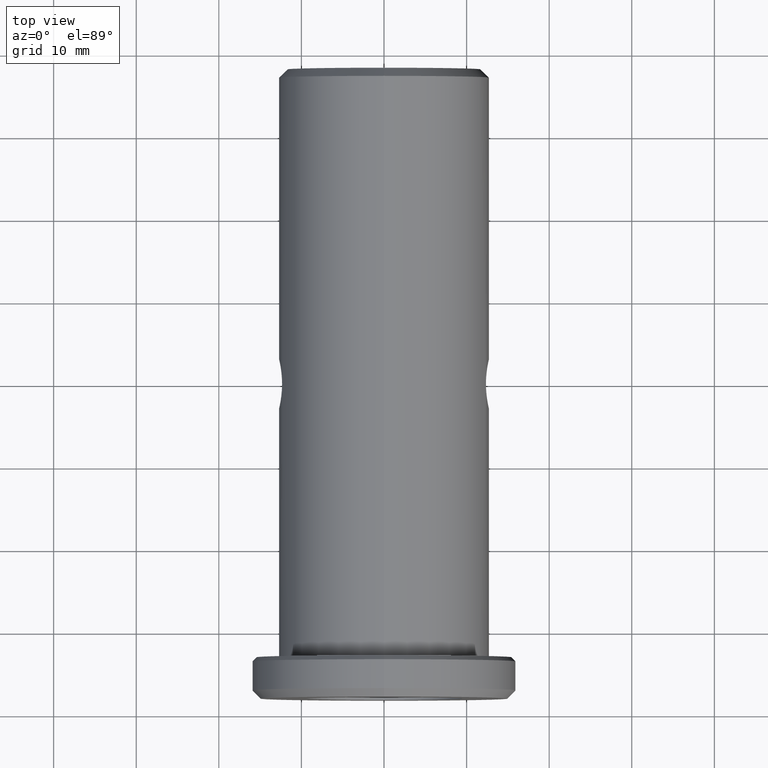
[diagram: clean part render]
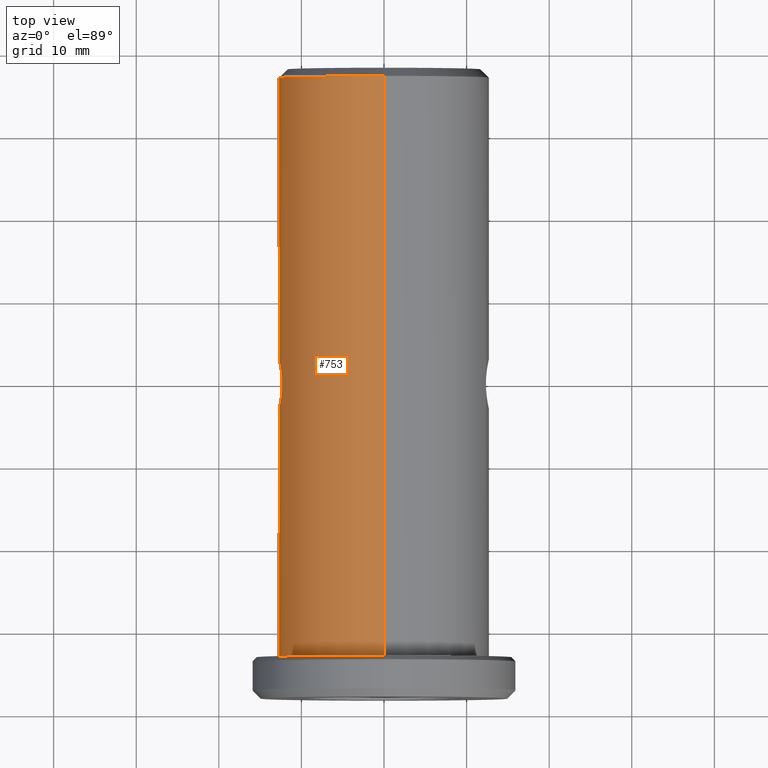
[diagram: same view with one face highlighted and labeled with its STEP entity id]
A machine part, top view. The second image highlights one B-rep face of the part: STEP entity #753.
In plain terms, the highlighted cylindrical surface (partial cylindrical patch) has radius 12.7 mm, axis along (0, 1, 0).
Its self-contained STEP definition (entity closure, byte-faithful):
#5 = CARTESIAN_POINT ( 'NONE',  ( -12.34058345460214700, 3.673897267749889900E-016, 3.000000000000000400 ) ) ;
#12 = VERTEX_POINT ( 'NONE', #610 ) ;
#19 = CARTESIAN_POINT ( 'NONE',  ( -12.37722027103388500, -0.9685606658001284500, 2.846111210040976200 ) ) ;
#22 = CARTESIAN_POINT ( 'NONE',  ( -12.67747894214159700, -2.903424418151325300, 0.7802111343050290900 ) ) ;
#44 = B_SPLINE_CURVE_WITH_KNOTS ( 'NONE', 3,
 ( #181, #187, #102, #94, #92, #62, #52, #126, #404, #422, #418, #431, #165, #112, #1009, #262, #152, #640, #624, #122, #311, #453, #562, #758, #133, #380, #467, #617, #725, #738 ),
 .UNSPECIFIED., .F., .F.,
 ( 4, 2, 2, 2, 2, 2, 2, 2, 2, 2, 2, 2, 2, 2, 4 ),
 ( 0.009412667079034401800, 0.01058893397553798700, 0.01117706742378978000, 0.01176520087204157300, 0.01235333432029336500, 0.01294146776854516000, 0.01411773466504874500, 0.01470586811330053600, 0.01529400156155233000, 0.01588213500980412100, 0.01647026845805591600, 0.01705840190630770700, 0.01764653535455949800, 0.01823466880281129200, 0.01882280225106308300 ),
 .UNSPECIFIED. ) ;
#52 = CARTESIAN_POINT ( 'NONE',  ( -12.49796677050642300, 1.981859612206928300, 2.260636793640891100 ) ) ;
#55 = CARTESIAN_POINT ( 'NONE',  ( -12.41102950409115700, -1.332781145287208000, -2.694869083710705200 ) ) ;
#62 = CARTESIAN_POINT ( 'NONE',  ( -12.47468320798980900, 1.831332780074599800, 2.384247804627435600 ) ) ;
#78 = CARTESIAN_POINT ( 'NONE',  ( -12.63135113081014500, -2.695621424171695600, -1.331080578736588000 ) ) ;
#85 = CARTESIAN_POINT ( 'NONE',  ( -12.67748171377693100, -2.903438611103019300, -0.7804499343708752900 ) ) ;
#92 = CARTESIAN_POINT ( 'NONE',  ( -12.43103365166612800, 1.505541849477609600, 2.602260764166044900 ) ) ;
#94 = CARTESIAN_POINT ( 'NONE',  ( -12.41076176351435700, 1.330169052897215400, 2.696087432792287700 ) ) ;
#102 = CARTESIAN_POINT ( 'NONE',  ( -12.36050455192009600, 0.7883155537857091700, 2.920874390630895600 ) ) ;
#106 = CARTESIAN_POINT ( 'NONE',  ( -12.37731333908835300, -0.9698132417050455700, -2.845713835891867200 ) ) ;
#112 = CARTESIAN_POINT ( 'NONE',  ( -12.70001675460108400, 3.000070927815543100, -0.1968384151971257200 ) ) ;
#122 = CARTESIAN_POINT ( 'NONE',  ( -12.56857411084801700, 2.385479401305897500, -1.829792836393111300 ) ) ;
#126 = CARTESIAN_POINT ( 'NONE',  ( -12.54482249560000200, 2.258576005346344800, 1.984207817577006100 ) ) ;
#133 = CARTESIAN_POINT ( 'NONE',  ( -12.41113163061574400, 1.333592059538673400, -2.694390179056004500 ) ) ;
#137 = VERTEX_POINT ( 'NONE', #657 ) ;
#146 = LINE ( 'NONE', #287, #522 ) ;
#147 = EDGE_CURVE ( 'NONE', #706, #789, #146, .T. ) ;
#152 = CARTESIAN_POINT ( 'NONE',  ( -12.66431776804078300, 2.846104808753820300, -0.9685504591483926600 ) ) ;
#165 = CARTESIAN_POINT ( 'NONE',  ( -12.69996635353023400, 2.999857563269277400, 0.3969109907540829800 ) ) ;
#166 = CARTESIAN_POINT ( 'NONE',  ( -12.34058345460214100, -0.1961959589774317500, 3.000000000000000400 ) ) ;
#181 = CARTESIAN_POINT ( 'NONE',  ( -12.34058345460214700, 3.673897267749889900E-016, 3.000000000000000400 ) ) ;
#182 = CARTESIAN_POINT ( 'NONE',  ( -12.54505977580016900, -2.259940119749591900, 1.982768662898593400 ) ) ;
#187 = CARTESIAN_POINT ( 'NONE',  ( -12.34058345460214300, 0.3922863687159829900, 3.000000000000000000 ) ) ;
#246 = ORIENTED_EDGE ( 'NONE', *, *, #971, .T. ) ;
#249 = CARTESIAN_POINT ( 'NONE',  ( -12.56820308289541500, -2.383544736948751000, -1.832375976632214300 ) ) ;
#262 = CARTESIAN_POINT ( 'NONE',  ( -12.67766831579774900, 2.904248302489957000, -0.7770932324453367900 ) ) ;
#266 = DIRECTION ( 'NONE',  ( 0.0000000000000000000, 0.0000000000000000000, 1.000000000000000000 ) ) ;
#267 = CARTESIAN_POINT ( 'NONE',  ( 0.0000000000000000000, 26.50383876709786800, 0.0000000000000000000 ) ) ;
#274 = DIRECTION ( 'NONE',  ( 0.0000000000000000000, 1.000000000000000000, 0.0000000000000000000 ) ) ;
#287 = CARTESIAN_POINT ( 'NONE',  ( 0.0000000000000000000, 26.50383876709786800, 12.70000000000000800 ) ) ;
#289 = CARTESIAN_POINT ( 'NONE',  ( -12.69540616597752500, -2.980729924772695900, -0.3928192765991701500 ) ) ;
#291 = CARTESIAN_POINT ( 'NONE',  ( -12.61142186795497000, -2.601781344507209800, 1.506246624472293400 ) ) ;
#302 = EDGE_CURVE ( 'NONE', #390, #953, #924, .T. ) ;
#304 = ORIENTED_EDGE ( 'NONE', *, *, #761, .F. ) ;
#307 = ORIENTED_EDGE ( 'NONE', *, *, #147, .T. ) ;
#311 = CARTESIAN_POINT ( 'NONE',  ( -12.54510018992768900, 2.260074456527657800, -1.982419639357174000 ) ) ;
#314 = CARTESIAN_POINT ( 'NONE',  ( -12.47454810378221300, -1.830403358838166700, -2.384947633839919600 ) ) ;
#320 = CARTESIAN_POINT ( 'NONE',  ( -12.66417354560177300, -2.845458674054940600, -0.9703171150653145900 ) ) ;
#344 = DIRECTION ( 'NONE',  ( 0.0000000000000000000, 1.000000000000000000, 0.0000000000000000000 ) ) ;
#351 = FACE_BOUND ( 'NONE', #740, .T. ) ;
#380 = CARTESIAN_POINT ( 'NONE',  ( -12.37755469971725100, 0.9726971642225672500, -2.844655769152295600 ) ) ;
#385 = CIRCLE ( 'NONE', #633, 12.70000000000000800 ) ;
#387 = CARTESIAN_POINT ( 'NONE',  ( -12.34058345460214500, 0.0000000000000000000, -3.000000000000000400 ) ) ;
#390 = VERTEX_POINT ( 'NONE', #409 ) ;
#392 = CYLINDRICAL_SURFACE ( 'NONE', #981, 12.70000000000000800 ) ;
#404 = CARTESIAN_POINT ( 'NONE',  ( -12.56844300761515900, 2.384757141274783000, 1.830568633040425400 ) ) ;
#409 = CARTESIAN_POINT ( 'NONE',  ( -12.34058345460214500, 0.0000000000000000000, -3.000000000000000400 ) ) ;
#418 = CARTESIAN_POINT ( 'NONE',  ( -12.63103276044702200, 2.694153476701963300, 1.334365138730794900 ) ) ;
#422 = CARTESIAN_POINT ( 'NONE',  ( -12.61140969090288500, 2.601722771355546600, 1.506348818880467200 ) ) ;
#429 = VECTOR ( 'NONE', #344, 1000.000000000000000 ) ;
#431 = CARTESIAN_POINT ( 'NONE',  ( -12.68085570871133200, 2.921643193019113600, 0.7873843855616282600 ) ) ;
#448 = CARTESIAN_POINT ( 'NONE',  ( -12.43094741850346300, -1.504818854237115500, -2.602666303646544900 ) ) ;
#451 = LINE ( 'NONE', #589, #429 ) ;
#453 = CARTESIAN_POINT ( 'NONE',  ( -12.49844356737609800, 1.984814696794136900, -2.257971389311169500 ) ) ;
#467 = CARTESIAN_POINT ( 'NONE',  ( -12.36381461348561200, 0.7818070014868243600, -2.903044826625438300 ) ) ;
#493 = CARTESIAN_POINT ( 'NONE',  ( -12.49792670909634000, -1.981660059747384100, 2.260912276721162700 ) ) ;
#516 = DIRECTION ( 'NONE',  ( 0.0000000000000000000, 0.0000000000000000000, 1.000000000000000000 ) ) ;
#518 = ORIENTED_EDGE ( 'NONE', *, *, #880, .F. ) ;
#519 = ORIENTED_EDGE ( 'NONE', *, *, #874, .T. ) ;
#522 = VECTOR ( 'NONE', #775, 1000.000000000000000 ) ;
#526 = CARTESIAN_POINT ( 'NONE',  ( 0.0000000000000000000, -33.10000000000000100, 0.0000000000000000000 ) ) ;
#527 = CARTESIAN_POINT ( 'NONE',  ( -12.54501379897762100, -2.259605770921662600, -1.982973375450764600 ) ) ;
#532 = AXIS2_PLACEMENT_3D ( 'NONE', #846, #844, #837 ) ;
#533 = CARTESIAN_POINT ( 'NONE',  ( -12.63130768527638300, -2.695434302115960400, 1.331724090208788300 ) ) ;
#549 = DIRECTION ( 'NONE',  ( 0.0000000000000000000, 1.000000000000000000, 0.0000000000000000000 ) ) ;
#557 = CARTESIAN_POINT ( 'NONE',  ( -12.34539429430230400, -0.3944842333164502700, -2.980401311188662900 ) ) ;
#562 = CARTESIAN_POINT ( 'NONE',  ( -12.47492482388633100, 1.833045648879968700, -2.383012267823712900 ) ) ;
#589 = CARTESIAN_POINT ( 'NONE',  ( 1.555301434917139400E-015, 26.50383876709786800, -12.70000000000000800 ) ) ;
#608 = CARTESIAN_POINT ( 'NONE',  ( -12.36364845247827800, -0.7788841922981170100, -2.903747440990432200 ) ) ;
#610 = CARTESIAN_POINT ( 'NONE',  ( 1.555301434917139400E-015, -33.10000000000000100, -12.70000000000000800 ) ) ;
#615 = ORIENTED_EDGE ( 'NONE', *, *, #302, .F. ) ;
#617 = CARTESIAN_POINT ( 'NONE',  ( -12.34539404842546900, 0.3950501257214644200, -2.980407161972672200 ) ) ;
#621 = CARTESIAN_POINT ( 'NONE',  ( 1.555301434917139400E-015, 37.10000000000000100, 12.70000000000000800 ) ) ;
#624 = CARTESIAN_POINT ( 'NONE',  ( -12.61184948913362500, 2.603882549335855100, -1.502813849894423700 ) ) ;
#633 = AXIS2_PLACEMENT_3D ( 'NONE', #526, #549, #516 ) ;
#634 = CARTESIAN_POINT ( 'NONE',  ( -12.70001863278653100, -3.000078878802317400, 0.1952541387555743500 ) ) ;
#640 = CARTESIAN_POINT ( 'NONE',  ( -12.63141432737123200, 2.695922098692304900, -1.330566274978683700 ) ) ;
#657 = CARTESIAN_POINT ( 'NONE',  ( 0.0000000000000000000, 37.10000000000000100, -12.70000000000000800 ) ) ;
#706 = VERTEX_POINT ( 'NONE', #809 ) ;
#725 = CARTESIAN_POINT ( 'NONE',  ( -12.34058345460214500, 0.1989244033418513200, -2.999999999999999100 ) ) ;
#738 = CARTESIAN_POINT ( 'NONE',  ( -12.34058345460214500, 0.0000000000000000000, -3.000000000000000400 ) ) ;
#740 = EDGE_LOOP ( 'NONE', ( #615, #304 ) ) ;
#741 = CARTESIAN_POINT ( 'NONE',  ( -12.49830911177946500, -1.983980261250873700, -2.258721755926568000 ) ) ;
#752 = CARTESIAN_POINT ( 'NONE',  ( -12.43116662401985700, -1.506563363095319900, 2.601605836714065800 ) ) ;
#753 = ADVANCED_FACE ( 'NONE', ( #848, #351 ), #392, .T. ) ;
#755 = CARTESIAN_POINT ( 'NONE',  ( -12.34058345460214700, -0.1989779262808130400, -3.000000000000000000 ) ) ;
#758 = CARTESIAN_POINT ( 'NONE',  ( -12.43104311460961700, 1.505702462821098900, -2.602242093451448700 ) ) ;
#761 = EDGE_CURVE ( 'NONE', #953, #390, #44, .T. ) ;
#770 = CARTESIAN_POINT ( 'NONE',  ( -12.34540943226093800, -0.3953800005819866300, 2.980342611530815100 ) ) ;
#775 = DIRECTION ( 'NONE',  ( 0.0000000000000000000, 1.000000000000000000, 0.0000000000000000000 ) ) ;
#778 = EDGE_LOOP ( 'NONE', ( #518, #519, #307, #246 ) ) ;
#784 = CARTESIAN_POINT ( 'NONE',  ( -12.61164142107485400, -2.602893796124841500, -1.504603309470561100 ) ) ;
#789 = VERTEX_POINT ( 'NONE', #621 ) ;
#809 = CARTESIAN_POINT ( 'NONE',  ( 0.0000000000000000000, -33.10000000000000100, 12.70000000000000800 ) ) ;
#810 = CARTESIAN_POINT ( 'NONE',  ( -12.56845845584328800, -2.384838063548885100, 1.830462364816148200 ) ) ;
#820 = CIRCLE ( 'NONE', #532, 12.70000000000000800 ) ;
#837 = DIRECTION ( 'NONE',  ( 0.0000000000000000000, 0.0000000000000000000, 1.000000000000000000 ) ) ;
#844 = DIRECTION ( 'NONE',  ( -0.0000000000000000000, -1.000000000000000000, -0.0000000000000000000 ) ) ;
#846 = CARTESIAN_POINT ( 'NONE',  ( 0.0000000000000000000, 37.10000000000000100, 0.0000000000000000000 ) ) ;
#848 = FACE_OUTER_BOUND ( 'NONE', #778, .T. ) ;
#874 = EDGE_CURVE ( 'NONE', #12, #706, #385, .T. ) ;
#879 = CARTESIAN_POINT ( 'NONE',  ( -12.41082553459716200, -1.330833789716794100, 2.695800476185902900 ) ) ;
#880 = EDGE_CURVE ( 'NONE', #12, #137, #451, .T. ) ;
#924 = B_SPLINE_CURVE_WITH_KNOTS ( 'NONE', 3,
 ( #387, #755, #557, #608, #106, #55, #448, #314, #741, #527, #249, #784, #78, #320, #85, #289, #980, #634, #976, #22, #1014, #533, #291, #810, #182, #493, #967, #752, #879, #19, #1020, #770, #166, #5 ),
 .UNSPECIFIED., .F., .F.,
 ( 4, 2, 2, 2, 2, 2, 2, 2, 2, 2, 2, 2, 2, 2, 2, 2, 4 ),
 ( 0.0000000000000000000, 0.0005882916924396502200, 0.001176583384879300400, 0.001764875077318950200, 0.002353166769758600500, 0.002941458462198250700, 0.003529750154637900500, 0.004118041847077551600, 0.004706333539517200900, 0.005294625231956851100, 0.005882916924396501400, 0.006471208616836151600, 0.007059500309275801000, 0.007647792001715452900, 0.008236083694155103100, 0.008824375386594753400, 0.009412667079034401800 ),
 .UNSPECIFIED. ) ;
#928 = CARTESIAN_POINT ( 'NONE',  ( -12.34058345460214700, 3.673897267749889900E-016, 3.000000000000000400 ) ) ;
#953 = VERTEX_POINT ( 'NONE', #928 ) ;
#967 = CARTESIAN_POINT ( 'NONE',  ( -12.47463182756675300, -1.830920196572525700, 2.384495194046026600 ) ) ;
#971 = EDGE_CURVE ( 'NONE', #789, #137, #820, .T. ) ;
#976 = CARTESIAN_POINT ( 'NONE',  ( -12.69532512922620900, -2.980382720429737700, 0.3948690995440596300 ) ) ;
#980 = CARTESIAN_POINT ( 'NONE',  ( -12.69998125227231400, -2.999920634613350200, -0.1976705434757175800 ) ) ;
#981 = AXIS2_PLACEMENT_3D ( 'NONE', #267, #274, #266 ) ;
#1009 = CARTESIAN_POINT ( 'NONE',  ( -12.69541110465184500, 2.980746113517730200, -0.3920264036733793800 ) ) ;
#1014 = CARTESIAN_POINT ( 'NONE',  ( -12.66440676946795700, -2.846512086650439000, 0.9675867248049375700 ) ) ;
#1020 = CARTESIAN_POINT ( 'NONE',  ( -12.36380123083862000, -0.7815191426890513200, 2.903100972508035700 ) ) ;